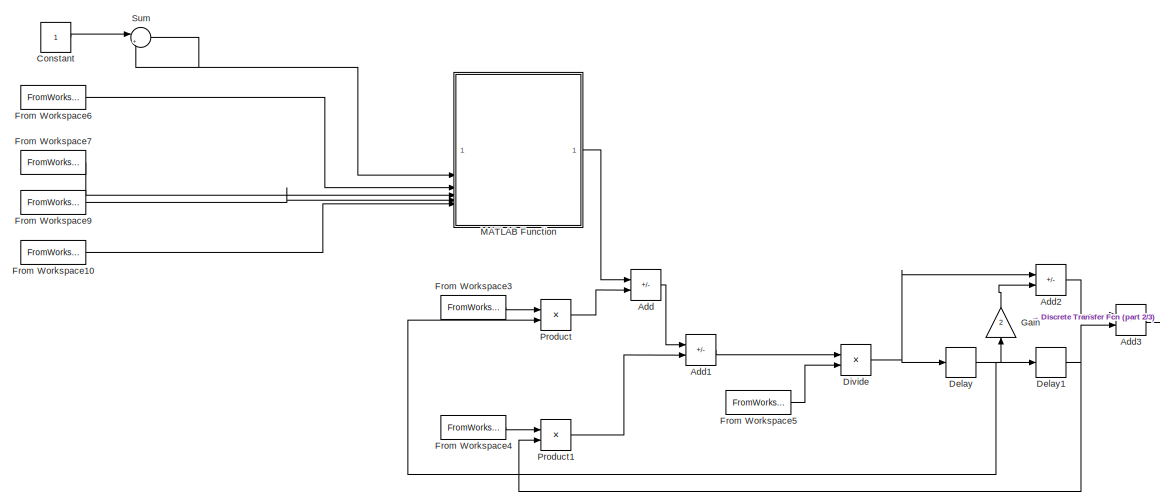
[diagram: root canvas - part 1/3, left side, full height]
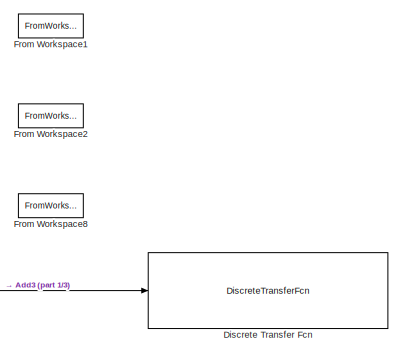
[diagram: root canvas - part 2/3, middle right region]
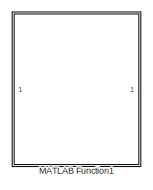
[diagram: root canvas - part 3/3, bottom right region]
MODEL slx_00960f06e918
KIND model
CONFIG AbsTol = auto
CONFIG EnableMultiTasking = off
CONFIG FixedStep = auto
CONFIG MaxStep = auto
CONFIG MinStep = auto
CONFIG RelTol = 1e-3
CONFIG SampleTimeConstraint = Unconstrained
CONFIG SolverName = VariableStepAuto
CONFIG StartTime = 0.0
CONFIG StopTime = 10.0
BLOCK [Sum] Add
  IconShape = rectangular
  Inputs = +-
BLOCK [Sum] Add1
  IconShape = rectangular
  Inputs = +-
BLOCK [Sum] Add2
  IconShape = rectangular
  Inputs = +-
BLOCK [Sum] Add3
  IconShape = rectangular
BLOCK [Constant] Constant
BLOCK [Delay] Delay
  DelayLength = 1
  InitialCondition = 0
  InputPortMap = u0
BLOCK [Delay] Delay1
  DelayLength = 1
  InitialCondition = 0
  InputPortMap = u0
BLOCK [DiscreteTransferFcn] Discrete Transfer Fcn
  Denominator = [M_ps C_ps K_ps]
  InputPortMap = u0
  Numerator = [-M_ps]
BLOCK [Product] Divide
  Inputs = */
BLOCK [FromWorkspace] From Workspace1
  VariableName = a_ps
BLOCK [FromWorkspace] From Workspace10
  VariableName = ps_weizhi
BLOCK [FromWorkspace] From Workspace2
  VariableName = b_ps
BLOCK [FromWorkspace] From Workspace3
  VariableName = an
BLOCK [FromWorkspace] From Workspace4
  VariableName = bn
BLOCK [FromWorkspace] From Workspace5
  VariableName = Ken
BLOCK [FromWorkspace] From Workspace6
  VariableName = VV
BLOCK [FromWorkspace] From Workspace7
  VariableName = ACC_el
BLOCK [FromWorkspace] From Workspace8
  VariableName = Ke_ps
BLOCK [FromWorkspace] From Workspace9
  VariableName = diagM
BLOCK [Gain] Gain
  Gain = 2
  NameLocation = right
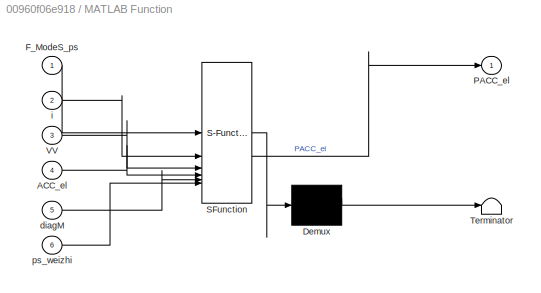
BLOCK [SubSystem] MATLAB Function
  ErrorFcn = Stateflow.Translate.translate
  LibrarySourceBlock = simulink/User-Defined\nFunctions/MATLAB Function
  PermitHierarchicalResolution = ExplicitOnly
  SFBlockType = MATLAB Function
  TreatAsAtomicUnit = on
BLOCK [Demux] MATLAB Function/ Demux 
  Outputs = 1
BLOCK [S-Function] MATLAB Function/ SFunction 
  EnableBusSupport = off
  FunctionName = sf_sfun
  PortCounts = [6 2]
  SFcnIsStateOwnerBlock = off
  SFunctionDeploymentMode = off
  Tag = Stateflow S-Function 2
BLOCK [Terminator] MATLAB Function/ Terminator 
BLOCK [Inport] MATLAB Function/ACC_el
  Port = 4
BLOCK [Inport] MATLAB Function/F_ModeS_ps
BLOCK [Outport] MATLAB Function/PACC_el
BLOCK [Inport] MATLAB Function/VV
  Port = 3
BLOCK [Inport] MATLAB Function/diagM
  Port = 5
BLOCK [Inport] MATLAB Function/i
  Port = 2
BLOCK [Inport] MATLAB Function/ps_weizhi
  Port = 6
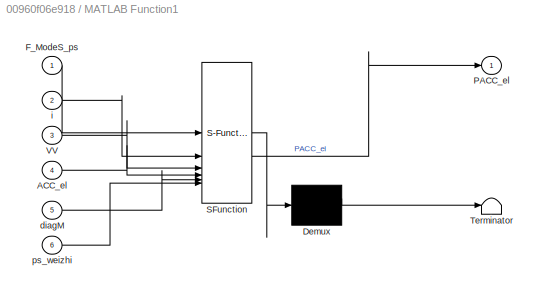
BLOCK [SubSystem] MATLAB Function1
  ErrorFcn = Stateflow.Translate.translate
  LibrarySourceBlock = simulink/User-Defined\nFunctions/MATLAB Function
  PermitHierarchicalResolution = ExplicitOnly
  SFBlockType = MATLAB Function
  TreatAsAtomicUnit = on
BLOCK [Demux] MATLAB Function1/ Demux 
  Outputs = 1
BLOCK [S-Function] MATLAB Function1/ SFunction 
  EnableBusSupport = off
  FunctionName = sf_sfun
  PortCounts = [6 2]
  SFcnIsStateOwnerBlock = off
  SFunctionDeploymentMode = off
  Tag = Stateflow S-Function 1
BLOCK [Terminator] MATLAB Function1/ Terminator 
BLOCK [Inport] MATLAB Function1/ACC_el
  Port = 4
BLOCK [Inport] MATLAB Function1/F_ModeS_ps
BLOCK [Outport] MATLAB Function1/PACC_el
BLOCK [Inport] MATLAB Function1/VV
  Port = 3
BLOCK [Inport] MATLAB Function1/diagM
  Port = 5
BLOCK [Inport] MATLAB Function1/i
  Port = 2
BLOCK [Inport] MATLAB Function1/ps_weizhi
  Port = 6
BLOCK [Product] Product
BLOCK [Product] Product1
BLOCK [Sum] Sum
  Inputs = |++
LINE Add1:1 -> Divide:1
LINE Add2:1 -> Add3:1
LINE Add3:1 -> Discrete Transfer Fcn:1
LINE Add:1 -> Add1:1
LINE Constant:1 -> Sum:1
NET Delay1:1 -> Add3:2, Product1:2
NET Delay:1 -> Delay1:1, Gain:1, Product:2
NET Divide:1 -> Add2:1, Delay:1
LINE From Workspace10:1 -> MATLAB Function:6
LINE From Workspace3:1 -> Product:1
LINE From Workspace4:1 -> Product1:1
LINE From Workspace5:1 -> Divide:2
LINE From Workspace6:1 -> MATLAB Function:3
LINE From Workspace7:1 -> MATLAB Function:4
LINE From Workspace9:1 -> MATLAB Function:5
LINE Gain:1 -> Add2:2
LINE MATLAB Function:1 -> Add:1
LINE Product1:1 -> Add1:2
LINE Product:1 -> Add:2
NET Sum:1 -> MATLAB Function:2, Sum:2
note: NET lines group one-source signal fan-out (src -> all destinations, sorted); 1:1 wires keep LINE
CHART MATLAB Function1 states=1 transitions=1
  STATE_LABEL 'eML_blk_kernel()'
  STATE_LABEL 'SCRIPT:\nfunction PACC_el  = fcn(F_ModeS_ps,i,VV,ACC_el,diagM,ps_weizhi)\n\nend'
CHART MATLAB Function states=1 transitions=1
  STATE_LABEL 'eML_blk_kernel()'
  STATE_LABEL "SCRIPT:\nfunction PACC_el  = fcn(F_ModeS_ps,i,VV,ACC_el,diagM,ps_weizhi)\n    for ii = 1:order\n        PACC_el(ii,i) = VV(:,ii)' * (ACC_el(i, 2) * diagM + F_ModeS_ps(i-1) * ps_weizhi);\n    end\nend"
CHART  states=0 transitions=0
CHART  states=0 transitions=0
